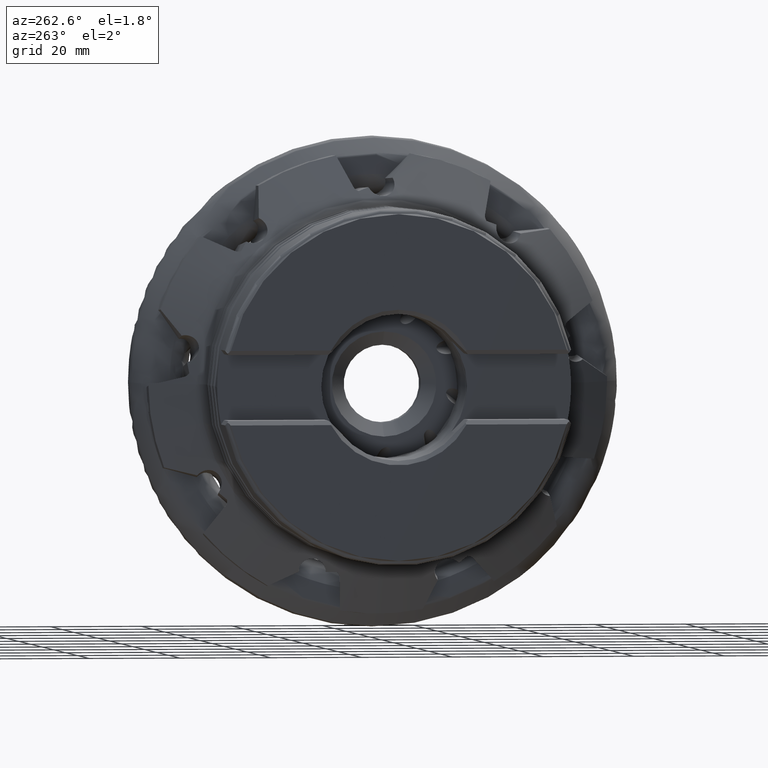
[diagram: clean part render]
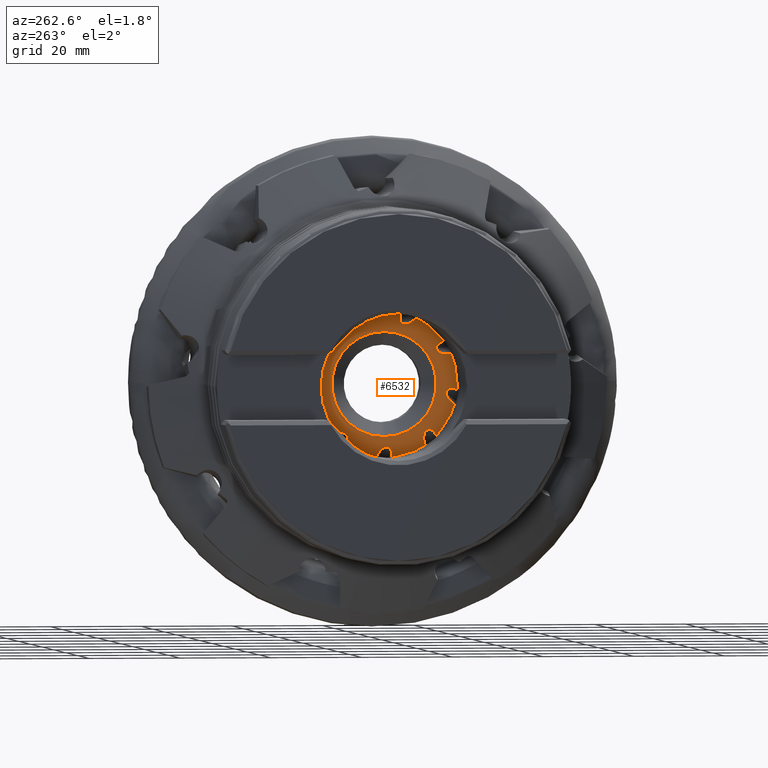
[diagram: same view with one face highlighted and labeled with its STEP entity id]
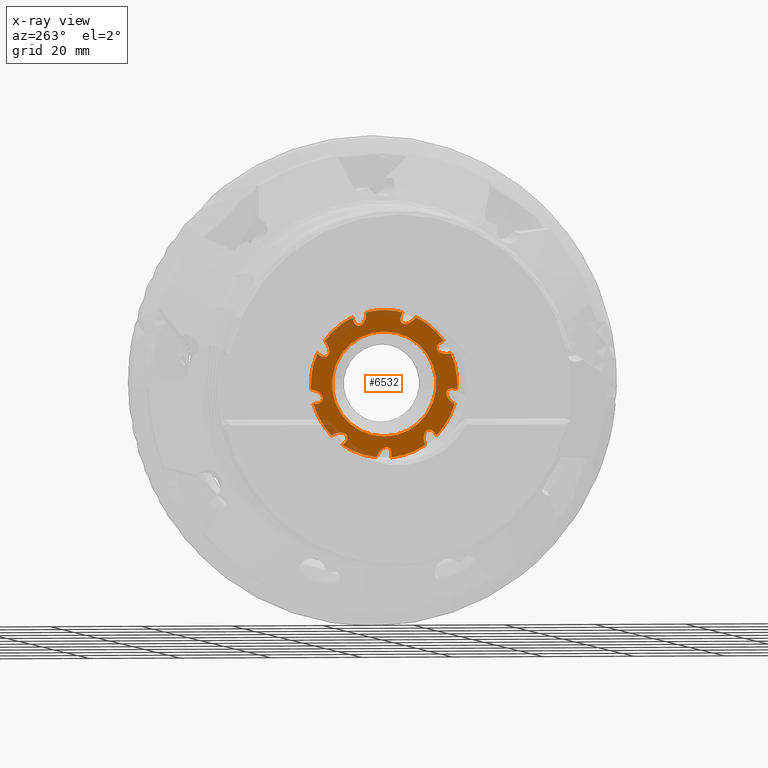
[diagram: x-ray of the same camera — body ghosted, the highlighted face saturated]
A machine part, auxiliary view. The second image highlights one B-rep face of the part: STEP entity #6532.
The next image is the same camera in x-ray: the body ghosted, the highlighted face saturated — about 13% of this face is hidden behind the body in this view.
In plain terms, the highlighted planar face has unit normal (1, 0, -0).
Its self-contained STEP definition (entity closure, byte-faithful):
#217 = DIRECTION ( 'NONE',  ( 0.0000000000000000000, 0.0000000000000000000, -1.000000000000000000 ) ) ;
#341 = DIRECTION ( 'NONE',  ( -0.0000000000000000000, 0.0000000000000000000, -1.000000000000000000 ) ) ;
#369 = EDGE_CURVE ( 'NONE', #13754, #2792, #745, .T. ) ;
#462 = CARTESIAN_POINT ( 'NONE',  ( -24.14999999999999900, 11.59154392015665500, -11.24538169859429400 ) ) ;
#623 = ORIENTED_EDGE ( 'NONE', *, *, #11697, .F. ) ;
#745 =( BOUNDED_CURVE ( )  B_SPLINE_CURVE ( 3, ( #11923, #5744, #12319, #11953 ),
 .UNSPECIFIED., .F., .F. ) 
 B_SPLINE_CURVE_WITH_KNOTS ( ( 4, 4 ),
 ( 5.888559016616056000, 8.097266387669348500 ),
 .UNSPECIFIED. ) 
 CURVE ( )  GEOMETRIC_REPRESENTATION_ITEM ( )  RATIONAL_B_SPLINE_CURVE ( ( 1.000000000000000000, 0.6331411988290459600, 0.6331411988290459600, 1.000000000000000000 ) ) 
 REPRESENTATION_ITEM ( '' )  );
#814 = ORIENTED_EDGE ( 'NONE', *, *, #8091, .F. ) ;
#1039 = ORIENTED_EDGE ( 'NONE', *, *, #9722, .F. ) ;
#1051 = ORIENTED_EDGE ( 'NONE', *, *, #11570, .F. ) ;
#1093 = EDGE_LOOP ( 'NONE', ( #12234, #9608 ) ) ;
#1106 = CARTESIAN_POINT ( 'NONE',  ( -24.14999999999999900, 13.11981632955508000, 5.929114685978293900 ) ) ;
#1232 = VERTEX_POINT ( 'NONE', #2932 ) ;
#1273 = CARTESIAN_POINT ( 'NONE',  ( -24.14999999999999900, -14.71600910748703200, -0.6502708822575408200 ) ) ;
#1464 = CARTESIAN_POINT ( 'NONE',  ( -24.14999999999999100, 13.49127161772788600, -3.139560930036347800 ) ) ;
#1477 =( BOUNDED_CURVE ( )  B_SPLINE_CURVE ( 3, ( #12694, #3353, #15557, #7444 ),
 .UNSPECIFIED., .F., .F. ) 
 B_SPLINE_CURVE_WITH_KNOTS ( ( 4, 4 ),
 ( 0.4056549918968359600, 1.814081080489764000 ),
 .UNSPECIFIED. ) 
 CURVE ( )  GEOMETRIC_REPRESENTATION_ITEM ( )  RATIONAL_B_SPLINE_CURVE ( ( 1.000000000000000000, 0.8414141931966204700, 0.8414141931966204700, 1.000000000000000000 ) ) 
 REPRESENTATION_ITEM ( '' )  );
#1481 = CARTESIAN_POINT ( 'NONE',  ( -24.14999999999999500, -1.483101034320183600, -13.81621824959037400 ) ) ;
#1543 = ORIENTED_EDGE ( 'NONE', *, *, #5676, .F. ) ;
#1590 = CIRCLE ( 'NONE', #9254, 16.14999999999999500 ) ;
#1816 = CARTESIAN_POINT ( 'NONE',  ( -24.14999999999999900, 8.098993803068603700, -11.68777280997601800 ) ) ;
#1935 = AXIS2_PLACEMENT_3D ( 'NONE', #7208, #16699, #8553 ) ;
#1945 =( BOUNDED_CURVE ( )  B_SPLINE_CURVE ( 3, ( #15038, #13721, #6989, #16465 ),
 .UNSPECIFIED., .F., .F. ) 
 B_SPLINE_CURVE_WITH_KNOTS ( ( 4, 4 ),
 ( 6.013548018748951800, 8.097266387669359100 ),
 .UNSPECIFIED. ) 
 CURVE ( )  GEOMETRIC_REPRESENTATION_ITEM ( )  RATIONAL_B_SPLINE_CURVE ( ( 1.000000000000000000, 0.6697440098179570100, 0.6697440098179570100, 1.000000000000000000 ) ) 
 REPRESENTATION_ITEM ( '' )  );
#1970 = CARTESIAN_POINT ( 'NONE',  ( -24.14999999999999900, -16.09929424643641500, -1.278759072952766300 ) ) ;
#2099 = VERTEX_POINT ( 'NONE', #8910 ) ;
#2132 = CARTESIAN_POINT ( 'NONE',  ( -24.14999999999999500, -3.539979013996285200, 14.19723946803632900 ) ) ;
#2162 = CARTESIAN_POINT ( 'NONE',  ( -24.14999999999999900, 14.69102664182707800, 6.707923390224924500 ) ) ;
#2186 = CARTESIAN_POINT ( 'NONE',  ( -24.14999999999999900, 6.942209280721255200, 14.58177733689098900 ) ) ;
#2210 = ORIENTED_EDGE ( 'NONE', *, *, #4980, .F. ) ;
#2211 = CARTESIAN_POINT ( 'NONE',  ( -24.14999999999999900, -13.15474538348818500, 9.368840584383734800 ) ) ;
#2243 = VERTEX_POINT ( 'NONE', #12605 ) ;
#2254 = DIRECTION ( 'NONE',  ( 1.000000000000000000, -0.0000000000000000000, -0.0000000000000000000 ) ) ;
#2306 = CARTESIAN_POINT ( 'NONE',  ( -24.14999999999999500, 6.831463583568758900, 13.44527595626976800 ) ) ;
#2464 = EDGE_CURVE ( 'NONE', #8499, #14208, #1590, .T. ) ;
#2469 = ORIENTED_EDGE ( 'NONE', *, *, #2522, .F. ) ;
#2522 = EDGE_CURVE ( 'NONE', #12551, #8160, #11029, .T. ) ;
#2573 = EDGE_CURVE ( 'Kante14', #17249, #2243, #15228, .T. ) ;
#2676 = EDGE_CURVE ( 'NONE', #13840, #15538, #7873, .T. ) ;
#2692 = CARTESIAN_POINT ( 'NONE',  ( -24.14999999999999900, -13.68797447902182700, -0.9760536445823683200 ) ) ;
#2778 = EDGE_CURVE ( 'NONE', #8272, #9330, #5215, .T. ) ;
#2792 = VERTEX_POINT ( 'NONE', #14893 ) ;
#2848 = CARTESIAN_POINT ( 'NONE',  ( -24.14999999999999500, -11.54762193578925900, 7.880020486995150900 ) ) ;
#2926 = DIRECTION ( 'NONE',  ( 1.000000000000000000, -0.0000000000000000000, -0.0000000000000000000 ) ) ;
#2932 = CARTESIAN_POINT ( 'NONE',  ( -24.14999999999999900, 6.942209280721255200, 14.58177733689098900 ) ) ;
#3155 = ORIENTED_EDGE ( 'NONE', *, *, #17607, .F. ) ;
#3340 = CARTESIAN_POINT ( 'NONE',  ( -24.14999999999999900, -3.539979013996287400, 14.64316525251952000 ) ) ;
#3353 = CARTESIAN_POINT ( 'NONE',  ( -24.15000000000000200, -13.68797447902182700, -2.910416350409843900 ) ) ;
#3418 = CARTESIAN_POINT ( 'NONE',  ( -24.14999999999999900, 0.3373789618573311300, -13.81621824959037800 ) ) ;
#3497 = CARTESIAN_POINT ( 'NONE',  ( -24.14999999999999900, -1.536281258338803900, -16.07676397460872800 ) ) ;
#3565 = CARTESIAN_POINT ( 'NONE',  ( -24.14999999999999900, -11.51080440775160000, -11.32801314823063900 ) ) ;
#3596 = AXIS2_PLACEMENT_3D ( 'NONE', #4738, #14176, #6101 ) ;
#3695 = CARTESIAN_POINT ( 'NONE',  ( -24.14999999999999500, 6.310548466149256800, 12.72674562113707500 ) ) ;
#3816 = AXIS2_PLACEMENT_3D ( 'NONE', #7235, #16727, #8585 ) ;
#3826 = DIRECTION ( 'NONE',  ( 0.0000000000000000000, 0.0000000000000000000, -1.000000000000000000 ) ) ;
#3999 =( BOUNDED_CURVE ( )  B_SPLINE_CURVE ( 3, ( #2186, #2306, #3695, #13161 ),
 .UNSPECIFIED., .F., .F. ) 
 B_SPLINE_CURVE_WITH_KNOTS ( ( 4, 4 ),
 ( 5.023171320125287700, 6.340366300592976700 ),
 .UNSPECIFIED. ) 
 CURVE ( )  GEOMETRIC_REPRESENTATION_ITEM ( )  RATIONAL_B_SPLINE_CURVE ( ( 1.000000000000000000, 0.8605675710784140800, 0.8605675710784140800, 1.000000000000000000 ) ) 
 REPRESENTATION_ITEM ( '' )  );
#4052 = VERTEX_POINT ( 'NONE', #2211 ) ;
#4151 = CARTESIAN_POINT ( 'NONE',  ( -24.14999999999999900, -13.15474538348818500, 9.368840584383734800 ) ) ;
#4208 = ORIENTED_EDGE ( 'NONE', *, *, #2778, .F. ) ;
#4296 = EDGE_CURVE ( 'NONE', #12117, #12551, #5287, .T. ) ;
#4346 = VERTEX_POINT ( 'NONE', #12473 ) ;
#4356 = CARTESIAN_POINT ( 'NONE',  ( -24.14999999999999900, 4.580179757878720000, 12.72674562113708100 ) ) ;
#4486 = AXIS2_PLACEMENT_3D ( 'NONE', #6352, #15824, #7704 ) ;
#4580 =( BOUNDED_CURVE ( )  B_SPLINE_CURVE ( 3, ( #8232, #8169, #1481, #11030 ),
 .UNSPECIFIED., .F., .F. ) 
 B_SPLINE_CURVE_WITH_KNOTS ( ( 4, 4 ),
 ( 5.023171320125284100, 6.562663056319967900 ),
 .UNSPECIFIED. ) 
 CURVE ( )  GEOMETRIC_REPRESENTATION_ITEM ( )  RATIONAL_B_SPLINE_CURVE ( ( 1.000000000000000000, 0.8120583710662119300, 0.8120583710662119300, 1.000000000000000000 ) ) 
 REPRESENTATION_ITEM ( '' )  );
#4711 = ORIENTED_EDGE ( 'NONE', *, *, #8949, .F. ) ;
#4738 = CARTESIAN_POINT ( 'NONE',  ( -24.14999999999999900, 0.0000000000000000000, 0.0000000000000000000 ) ) ;
#4742 = CARTESIAN_POINT ( 'NONE',  ( -24.14999999999999900, -0.5710761144391371900, -13.81621824959037400 ) ) ;
#4823 = CIRCLE ( 'NONE', #14559, 16.14999999999999500 ) ;
#4950 = CARTESIAN_POINT ( 'NONE',  ( -24.14999999999999500, -10.52170667173065900, -9.989795166158895500 ) ) ;
#4980 = EDGE_CURVE ( 'Kante59', #2792, #1232, #4823, .T. ) ;
#4984 = ORIENTED_EDGE ( 'NONE', *, *, #17271, .F. ) ;
#5005 = EDGE_CURVE ( 'NONE', #12264, #15695, #11166, .T. ) ;
#5215 =( BOUNDED_CURVE ( )  B_SPLINE_CURVE ( 3, ( #16416, #15737, #15712, #15688 ),
 .UNSPECIFIED., .F., .F. ) 
 B_SPLINE_CURVE_WITH_KNOTS ( ( 4, 4 ),
 ( 6.234770721425889000, 8.097266387669348500 ),
 .UNSPECIFIED. ) 
 CURVE ( )  GEOMETRIC_REPRESENTATION_ITEM ( )  RATIONAL_B_SPLINE_CURVE ( ( 1.000000000000000000, 0.7312221527958424600, 0.7312221527958424600, 1.000000000000000000 ) ) 
 REPRESENTATION_ITEM ( '' )  );
#5241 = CARTESIAN_POINT ( 'NONE',  ( -24.14999999999999900, 14.69102664182707800, 6.707923390224924500 ) ) ;
#5287 =( BOUNDED_CURVE ( )  B_SPLINE_CURVE ( 3, ( #12302, #15041, #9651, #1464 ),
 .UNSPECIFIED., .F., .F. ) 
 B_SPLINE_CURVE_WITH_KNOTS ( ( 4, 4 ),
 ( 5.023171320125291200, 6.448202707183996900 ),
 .UNSPECIFIED. ) 
 CURVE ( )  GEOMETRIC_REPRESENTATION_ITEM ( )  RATIONAL_B_SPLINE_CURVE ( ( 1.000000000000000000, 0.8378131093291783000, 0.8378131093291783000, 1.000000000000000000 ) ) 
 REPRESENTATION_ITEM ( '' )  );
#5546 = CARTESIAN_POINT ( 'NONE',  ( -24.14999999999999900, 13.11981632955508000, 5.929114685978293900 ) ) ;
#5634 = AXIS2_PLACEMENT_3D ( 'NONE', #16576, #8432, #217 ) ;
#5635 = CARTESIAN_POINT ( 'NONE',  ( -24.14999999999999900, -11.54762193578925700, 8.527402187975420500 ) ) ;
#5649 = EDGE_CURVE ( 'NONE', #14208, #13840, #7259, .T. ) ;
#5676 = EDGE_CURVE ( 'NONE', #15538, #12989, #13246, .T. ) ;
#5744 = CARTESIAN_POINT ( 'NONE',  ( -24.14999999999999900, 11.53798811412998200, 5.929114685978286800 ) ) ;
#5810 = ORIENTED_EDGE ( 'NONE', *, *, #2676, .F. ) ;
#5892 = CARTESIAN_POINT ( 'NONE',  ( -24.14999999999999900, 0.0000000000000000000, 0.0000000000000000000 ) ) ;
#6012 = DIRECTION ( 'NONE',  ( 1.000000000000000000, -0.0000000000000000000, -0.0000000000000000000 ) ) ;
#6101 = DIRECTION ( 'NONE',  ( 0.0000000000000000000, 0.0000000000000000000, -1.000000000000000000 ) ) ;
#6110 = DIRECTION ( 'NONE',  ( 1.000000000000000000, -0.0000000000000000000, -0.0000000000000000000 ) ) ;
#6334 = VERTEX_POINT ( 'NONE', #15024 ) ;
#6352 = CARTESIAN_POINT ( 'NONE',  ( -24.14999999999999900, 0.0000000000000000000, 0.0000000000000000000 ) ) ;
#6369 = EDGE_CURVE ( 'NONE', #17248, #4052, #17712, .T. ) ;
#6398 = EDGE_CURVE ( 'NONE', #9330, #14553, #10487, .T. ) ;
#6532 = ADVANCED_FACE ( 'NONE', ( #16419, #12814 ), #13950, .F. ) ;
#6767 = CARTESIAN_POINT ( 'NONE',  ( -24.14999999999999100, 13.49127161772788800, -2.183655831161580400 ) ) ;
#6842 = EDGE_CURVE ( 'NONE', #15695, #15361, #10464, .T. ) ;
#6879 = CARTESIAN_POINT ( 'NONE',  ( -24.14999999999999900, -15.53455818631349000, -4.415880654641853200 ) ) ;
#6911 =( BOUNDED_CURVE ( )  B_SPLINE_CURVE ( 3, ( #9454, #1273, #2692, #12186 ),
 .UNSPECIFIED., .F., .F. ) 
 B_SPLINE_CURVE_WITH_KNOTS ( ( 4, 4 ),
 ( 5.023171320125295700, 6.688840299076422200 ),
 .UNSPECIFIED. ) 
 CURVE ( )  GEOMETRIC_REPRESENTATION_ITEM ( )  RATIONAL_B_SPLINE_CURVE ( ( 1.000000000000000000, 0.7818542620542317000, 0.7818542620542317000, 1.000000000000000000 ) ) 
 REPRESENTATION_ITEM ( '' )  );
#6989 = CARTESIAN_POINT ( 'NONE',  ( -24.14999999999999900, 9.837245068173830400, -10.10122485492747700 ) ) ;
#7016 = CIRCLE ( 'NONE', #3816, 16.14999999999999500 ) ;
#7022 = AXIS2_PLACEMENT_3D ( 'NONE', #7303, #16793, #8649 ) ;
#7065 = CARTESIAN_POINT ( 'NONE',  ( -24.14999999999999900, 3.943014266156783100, 15.66126235323589800 ) ) ;
#7208 = CARTESIAN_POINT ( 'NONE',  ( -24.14999999999999900, 0.0000000000000000000, 0.0000000000000000000 ) ) ;
#7235 = CARTESIAN_POINT ( 'NONE',  ( -24.14999999999999900, 0.0000000000000000000, 0.0000000000000000000 ) ) ;
#7259 =( BOUNDED_CURVE ( )  B_SPLINE_CURVE ( 3, ( #3565, #13029, #4950, #14393 ),
 .UNSPECIFIED., .F., .T. ) 
 B_SPLINE_CURVE_WITH_KNOTS ( ( 4, 4 ),
 ( 5.023171320125289400, 6.127279709595552700 ),
 .UNSPECIFIED. ) 
 CURVE ( )  GEOMETRIC_REPRESENTATION_ITEM ( )  RATIONAL_B_SPLINE_CURVE ( ( 1.000000000000000000, 0.9009660151705200000, 0.9009660151705200000, 1.000000000000000000 ) ) 
 REPRESENTATION_ITEM ( '' )  );
#7303 = CARTESIAN_POINT ( 'NONE',  ( -24.14999999999999900, 0.0000000000000000000, 0.0000000000000000000 ) ) ;
#7444 = CARTESIAN_POINT ( 'NONE',  ( -24.14999999999999900, -15.53455818631349000, -4.415880654641853200 ) ) ;
#7506 = CARTESIAN_POINT ( 'NONE',  ( -24.14999999999999900, 1.651245785153387500, -16.06536296997404600 ) ) ;
#7548 = CARTESIAN_POINT ( 'NONE',  ( -24.14999999999999900, 0.0000000000000000000, 0.0000000000000000000 ) ) ;
#7610 = CARTESIAN_POINT ( 'NONE',  ( -24.14999999999999900, -7.046341224982010800, 14.53174371302766800 ) ) ;
#7704 = DIRECTION ( 'NONE',  ( 0.0000000000000000000, 0.0000000000000000000, -1.000000000000000000 ) ) ;
#7791 = DIRECTION ( 'NONE',  ( 0.0000000000000000000, 0.0000000000000000000, -1.000000000000000000 ) ) ;
#7873 =( BOUNDED_CURVE ( )  B_SPLINE_CURVE ( 3, ( #17335, #17358, #17411, #17276 ),
 .UNSPECIFIED., .F., .F. ) 
 B_SPLINE_CURVE_WITH_KNOTS ( ( 4, 4 ),
 ( 6.127279709595552700, 8.097266387669355600 ),
 .UNSPECIFIED. ) 
 CURVE ( )  GEOMETRIC_REPRESENTATION_ITEM ( )  RATIONAL_B_SPLINE_CURVE ( ( 1.000000000000000000, 0.7019124432205440200, 0.7019124432205440200, 1.000000000000000000 ) ) 
 REPRESENTATION_ITEM ( '' )  );
#7951 = EDGE_CURVE ( 'NONE', #1232, #4346, #3999, .T. ) ;
#8041 = CARTESIAN_POINT ( 'NONE',  ( -24.14999999999999900, 0.0000000000000000000, 0.0000000000000000000 ) ) ;
#8063 = DIRECTION ( 'NONE',  ( 1.000000000000000000, -0.0000000000000000000, -0.0000000000000000000 ) ) ;
#8091 = EDGE_CURVE ( 'NONE', #8160, #9915, #17456, .T. ) ;
#8160 = VERTEX_POINT ( 'NONE', #17349 ) ;
#8169 = CARTESIAN_POINT ( 'NONE',  ( -24.14999999999999500, -1.879297982015161000, -14.74412598199074000 ) ) ;
#8232 = CARTESIAN_POINT ( 'NONE',  ( -24.14999999999999900, -1.536281258338803900, -16.07676397460872800 ) ) ;
#8272 = VERTEX_POINT ( 'NONE', #2848 ) ;
#8432 = DIRECTION ( 'NONE',  ( 1.000000000000000000, -0.0000000000000000000, -0.0000000000000000000 ) ) ;
#8461 = ORIENTED_EDGE ( 'NONE', *, *, #17298, .F. ) ;
#8499 = VERTEX_POINT ( 'NONE', #6879 ) ;
#8553 = DIRECTION ( 'NONE',  ( 0.0000000000000000000, 0.0000000000000000000, -1.000000000000000000 ) ) ;
#8565 = DIRECTION ( 'NONE',  ( 1.000000000000000000, 0.0000000000000000000, -0.0000000000000000000 ) ) ;
#8585 = DIRECTION ( 'NONE',  ( 0.0000000000000000000, 0.0000000000000000000, -1.000000000000000000 ) ) ;
#8606 = AXIS2_PLACEMENT_3D ( 'NONE', #7548, #17033, #8894 ) ;
#8620 = CARTESIAN_POINT ( 'NONE',  ( -24.15000000000000200, 8.482393721522880600, -12.82059954712004700 ) ) ;
#8649 = DIRECTION ( 'NONE',  ( 0.0000000000000000000, 0.0000000000000000000, -1.000000000000000000 ) ) ;
#8894 = DIRECTION ( 'NONE',  ( 0.0000000000000000000, 0.0000000000000000000, -1.000000000000000000 ) ) ;
#8908 =( BOUNDED_CURVE ( )  B_SPLINE_CURVE ( 3, ( #2132, #10280, #15724, #7610 ),
 .UNSPECIFIED., .F., .F. ) 
 B_SPLINE_CURVE_WITH_KNOTS ( ( 4, 4 ),
 ( 5.746183701228819300, 8.097266387669360900 ),
 .UNSPECIFIED. ) 
 CURVE ( )  GEOMETRIC_REPRESENTATION_ITEM ( )  RATIONAL_B_SPLINE_CURVE ( ( 1.000000000000000000, 0.5900290168397193100, 0.5900290168397193100, 1.000000000000000000 ) ) 
 REPRESENTATION_ITEM ( '' )  );
#8910 = CARTESIAN_POINT ( 'NONE',  ( -24.14999999999999900, 8.098993803068603700, -11.68777280997601800 ) ) ;
#8949 = EDGE_CURVE ( 'NONE', #14553, #6334, #6911, .T. ) ;
#9250 = ORIENTED_EDGE ( 'NONE', *, *, #5649, .F. ) ;
#9254 = AXIS2_PLACEMENT_3D ( 'NONE', #5892, #6012, #3826 ) ;
#9288 = CARTESIAN_POINT ( 'NONE',  ( -24.14999999999999900, 13.62077913557445400, 5.929114685978290400 ) ) ;
#9330 = VERTEX_POINT ( 'NONE', #12020 ) ;
#9454 = CARTESIAN_POINT ( 'NONE',  ( -24.14999999999999900, -16.09929424643641500, -1.278759072952766300 ) ) ;
#9608 = ORIENTED_EDGE ( 'NONE', *, *, #2573, .T. ) ;
#9651 = CARTESIAN_POINT ( 'NONE',  ( -24.14999999999999100, 13.49127161772788400, -3.937971382500294700 ) ) ;
#9722 = EDGE_CURVE ( 'NONE', #15741, #10884, #7016, .T. ) ;
#9915 = VERTEX_POINT ( 'NONE', #2162 ) ;
#9975 = VERTEX_POINT ( 'NONE', #14444 ) ;
#9987 = CARTESIAN_POINT ( 'NONE',  ( -24.15000000000000200, 8.098993803068601900, -12.23531446281424100 ) ) ;
#10088 = CARTESIAN_POINT ( 'NONE',  ( -24.14999999999999900, -4.054944956896066300, 15.63265560922210200 ) ) ;
#10104 = CARTESIAN_POINT ( 'NONE',  ( -24.14999999999999900, -7.046341224982010800, 14.53174371302766800 ) ) ;
#10265 = ORIENTED_EDGE ( 'NONE', *, *, #6369, .F. ) ;
#10280 = CARTESIAN_POINT ( 'NONE',  ( -24.14999999999999900, -3.539979013996277200, 12.31011956976760400 ) ) ;
#10375 = CARTESIAN_POINT ( 'NONE',  ( -24.14999999999999500, -3.539979013996285200, 14.19723946803632900 ) ) ;
#10393 = CARTESIAN_POINT ( 'NONE',  ( -24.14999999999999900, -9.061688604275644800, -13.36818236108188200 ) ) ;
#10399 = CARTESIAN_POINT ( 'NONE',  ( -24.14999999999999900, 0.0000000000000000000, 0.0000000000000000000 ) ) ;
#10464 = CIRCLE ( 'NONE', #16172, 16.14999999999999500 ) ;
#10487 = CIRCLE ( 'NONE', #1935, 16.14999999999999500 ) ;
#10606 = ORIENTED_EDGE ( 'NONE', *, *, #16617, .F. ) ;
#10800 = ORIENTED_EDGE ( 'NONE', *, *, #12774, .F. ) ;
#10884 = VERTEX_POINT ( 'NONE', #11736 ) ;
#11029 =( BOUNDED_CURVE ( )  B_SPLINE_CURVE ( 3, ( #13039, #6767, #17196, #17128 ),
 .UNSPECIFIED., .F., .F. ) 
 B_SPLINE_CURVE_WITH_KNOTS ( ( 4, 4 ),
 ( 0.1650174000044108400, 1.814081080489767800 ),
 .UNSPECIFIED. ) 
 CURVE ( )  GEOMETRIC_REPRESENTATION_ITEM ( )  RATIONAL_B_SPLINE_CURVE ( ( 1.000000000000000000, 0.7859338513079230400, 0.7859338513079230400, 1.000000000000000000 ) ) 
 REPRESENTATION_ITEM ( '' )  );
#11030 = CARTESIAN_POINT ( 'NONE',  ( -24.14999999999999900, -0.5710761144391371900, -13.81621824959037400 ) ) ;
#11049 = CARTESIAN_POINT ( 'NONE',  ( -24.14999999999999900, 0.0000000000000000000, 0.0000000000000000000 ) ) ;
#11156 = ORIENTED_EDGE ( 'NONE', *, *, #7951, .F. ) ;
#11166 =( BOUNDED_CURVE ( )  B_SPLINE_CURVE ( 3, ( #4742, #3418, #15611, #7506 ),
 .UNSPECIFIED., .F., .F. ) 
 B_SPLINE_CURVE_WITH_KNOTS ( ( 4, 4 ),
 ( 0.2794777491403817000, 1.814081080489775300 ),
 .UNSPECIFIED. ) 
 CURVE ( )  GEOMETRIC_REPRESENTATION_ITEM ( )  RATIONAL_B_SPLINE_CURVE ( ( 1.000000000000000000, 0.8131909729238746600, 0.8131909729238746600, 1.000000000000000000 ) ) 
 REPRESENTATION_ITEM ( '' )  );
#11570 = EDGE_CURVE ( 'NONE', #4052, #8272, #17627, .T. ) ;
#11630 =( BOUNDED_CURVE ( )  B_SPLINE_CURVE ( 3, ( #16484, #4356, #15173, #7065 ),
 .UNSPECIFIED., .F., .F. ) 
 B_SPLINE_CURVE_WITH_KNOTS ( ( 4, 4 ),
 ( 0.05718099341339074500, 1.814081080489771100 ),
 .UNSPECIFIED. ) 
 CURVE ( )  GEOMETRIC_REPRESENTATION_ITEM ( )  RATIONAL_B_SPLINE_CURVE ( ( 1.000000000000000000, 0.7588966600608803000, 0.7588966600608803000, 1.000000000000000000 ) ) 
 REPRESENTATION_ITEM ( '' )  );
#11634 = ORIENTED_EDGE ( 'NONE', *, *, #5005, .F. ) ;
#11697 = EDGE_CURVE ( 'NONE', #15361, #2099, #12474, .T. ) ;
#11718 = VERTEX_POINT ( 'NONE', #462 ) ;
#11736 = CARTESIAN_POINT ( 'NONE',  ( -24.14999999999999900, -4.054944956896066300, 15.63265560922210200 ) ) ;
#11753 = DIRECTION ( 'NONE',  ( 0.0000000000000000000, 0.0000000000000000000, -1.000000000000000000 ) ) ;
#11923 = CARTESIAN_POINT ( 'NONE',  ( -24.14999999999999900, 13.11981632955508000, 5.929114685978293900 ) ) ;
#11947 = EDGE_CURVE ( 'Kante14', #2243, #17249, #13953, .T. ) ;
#11953 = CARTESIAN_POINT ( 'NONE',  ( -24.14999999999999900, 13.08738956043848500, 9.462702282822032600 ) ) ;
#11959 = CARTESIAN_POINT ( 'NONE',  ( -24.14999999999999900, 14.17880096616381500, 6.205711813319097400 ) ) ;
#11973 = CARTESIAN_POINT ( 'NONE',  ( -24.14999999999999900, -11.51080440775160000, -11.32801314823063900 ) ) ;
#11987 = CARTESIAN_POINT ( 'NONE',  ( -24.14999999999999900, 9.157084965715176500, -13.30301826393819600 ) ) ;
#12020 = CARTESIAN_POINT ( 'NONE',  ( -24.14999999999999900, -14.73863534559216300, 6.602660687151878700 ) ) ;
#12117 = VERTEX_POINT ( 'NONE', #13099 ) ;
#12176 = ORIENTED_EDGE ( 'NONE', *, *, #17651, .F. ) ;
#12186 = CARTESIAN_POINT ( 'NONE',  ( -24.14999999999999500, -13.68797447902183100, -2.042902996635218100 ) ) ;
#12207 = CARTESIAN_POINT ( 'NONE',  ( -24.14999999999999900, 1.977804580622974800E-015, 16.14999999999999500 ) ) ;
#12234 = ORIENTED_EDGE ( 'NONE', *, *, #11947, .T. ) ;
#12264 = VERTEX_POINT ( 'NONE', #16243 ) ;
#12302 = CARTESIAN_POINT ( 'NONE',  ( -24.14999999999999900, 15.56574936464763100, -4.304642460991587400 ) ) ;
#12319 = CARTESIAN_POINT ( 'NONE',  ( -24.14999999999999900, 11.52091621443550700, 7.789462005754042900 ) ) ;
#12396 = DIRECTION ( 'NONE',  ( 0.0000000000000000000, 0.0000000000000000000, -1.000000000000000000 ) ) ;
#12408 = CARTESIAN_POINT ( 'NONE',  ( -24.14999999999999900, 11.50000000000000700, 0.0000000000000000000 ) ) ;
#12426 = CARTESIAN_POINT ( 'NONE',  ( -24.14999999999999900, -9.927532761056991000, -9.989795166158895500 ) ) ;
#12473 = CARTESIAN_POINT ( 'NONE',  ( -24.14999999999999900, 5.597361308714099900, 12.72674562113708100 ) ) ;
#12474 =( BOUNDED_CURVE ( )  B_SPLINE_CURVE ( 3, ( #12638, #8620, #9987, #1816 ),
 .UNSPECIFIED., .F., .F. ) 
 B_SPLINE_CURVE_WITH_KNOTS ( ( 4, 4 ),
 ( 5.023171320125287700, 6.013548018748951800 ),
 .UNSPECIFIED. ) 
 CURVE ( )  GEOMETRIC_REPRESENTATION_ITEM ( )  RATIONAL_B_SPLINE_CURVE ( ( 1.000000000000000000, 0.9199194815623128500, 0.9199194815623128500, 1.000000000000000000 ) ) 
 REPRESENTATION_ITEM ( '' )  );
#12521 = VERTEX_POINT ( 'NONE', #10375 ) ;
#12541 = ORIENTED_EDGE ( 'NONE', *, *, #6398, .F. ) ;
#12551 = VERTEX_POINT ( 'NONE', #14572 ) ;
#12605 = CARTESIAN_POINT ( 'NONE',  ( -24.14999999999999900, 0.0000000000000000000, 11.50000000000000700 ) ) ;
#12638 = CARTESIAN_POINT ( 'NONE',  ( -24.14999999999999900, 9.157084965715176500, -13.30301826393819600 ) ) ;
#12694 = CARTESIAN_POINT ( 'NONE',  ( -24.14999999999999500, -13.68797447902183100, -2.042902996635218100 ) ) ;
#12774 = EDGE_CURVE ( 'NONE', #2099, #11718, #1945, .T. ) ;
#12806 = CARTESIAN_POINT ( 'NONE',  ( -24.14999999999999500, -3.539979013996285200, 14.19723946803632900 ) ) ;
#12814 = FACE_OUTER_BOUND ( 'NONE', #16521, .T. ) ;
#12820 = CARTESIAN_POINT ( 'NONE',  ( -24.14999999999999900, 1.408343819019457000E-015, -11.50000000000000700 ) ) ;
#12989 = VERTEX_POINT ( 'NONE', #3497 ) ;
#13029 = CARTESIAN_POINT ( 'NONE',  ( -24.14999999999999500, -11.10747484353566400, -10.48490003491041000 ) ) ;
#13039 = CARTESIAN_POINT ( 'NONE',  ( -24.14999999999999100, 13.49127161772788600, -3.139560930036347800 ) ) ;
#13099 = CARTESIAN_POINT ( 'NONE',  ( -24.14999999999999900, 15.56574936464763100, -4.304642460991587400 ) ) ;
#13161 = CARTESIAN_POINT ( 'NONE',  ( -24.14999999999999900, 5.597361308714099900, 12.72674562113708100 ) ) ;
#13246 = CIRCLE ( 'NONE', #4486, 16.14999999999999500 ) ;
#13592 = ORIENTED_EDGE ( 'NONE', *, *, #15780, .F. ) ;
#13721 = CARTESIAN_POINT ( 'NONE',  ( -24.14999999999999900, 8.098993803068601900, -10.32140406016443800 ) ) ;
#13754 = VERTEX_POINT ( 'NONE', #5546 ) ;
#13766 = AXIS2_PLACEMENT_3D ( 'NONE', #12408, #8565, #341 ) ;
#13811 = EDGE_CURVE ( 'NONE', #4346, #9975, #11630, .T. ) ;
#13840 = VERTEX_POINT ( 'NONE', #12426 ) ;
#13882 = ORIENTED_EDGE ( 'NONE', *, *, #2464, .F. ) ;
#13893 =( BOUNDED_CURVE ( )  B_SPLINE_CURVE ( 3, ( #10088, #14110, #3340, #12806 ),
 .UNSPECIFIED., .F., .F. ) 
 B_SPLINE_CURVE_WITH_KNOTS ( ( 4, 4 ),
 ( 5.023171320125285900, 5.746183701228819300 ),
 .UNSPECIFIED. ) 
 CURVE ( )  GEOMETRIC_REPRESENTATION_ITEM ( )  RATIONAL_B_SPLINE_CURVE ( ( 1.000000000000000000, 0.9569101134430180200, 0.9569101134430180200, 1.000000000000000000 ) ) 
 REPRESENTATION_ITEM ( '' )  );
#13922 = EDGE_CURVE ( 'NONE', #9975, #15741, #14104, .T. ) ;
#13946 = CIRCLE ( 'NONE', #8606, 16.14999999999999500 ) ;
#13950 = PLANE ( 'NONE',  #13766 ) ;
#13953 = CIRCLE ( 'NONE', #3596, 11.50000000000000700 ) ;
#14015 =( BOUNDED_CURVE ( )  B_SPLINE_CURVE ( 3, ( #5241, #11959, #9288, #1106 ),
 .UNSPECIFIED., .F., .F. ) 
 B_SPLINE_CURVE_WITH_KNOTS ( ( 4, 4 ),
 ( 5.023171320125298300, 5.888559016616056000 ),
 .UNSPECIFIED. ) 
 CURVE ( )  GEOMETRIC_REPRESENTATION_ITEM ( )  RATIONAL_B_SPLINE_CURVE ( ( 1.000000000000000000, 0.9385596441704994200, 0.9385596441704994200, 1.000000000000000000 ) ) 
 REPRESENTATION_ITEM ( '' )  );
#14104 = CIRCLE ( 'NONE', #7022, 16.14999999999999500 ) ;
#14110 = CARTESIAN_POINT ( 'NONE',  ( -24.14999999999999900, -3.719364007308015600, 15.14318300793895100 ) ) ;
#14176 = DIRECTION ( 'NONE',  ( 1.000000000000000000, -0.0000000000000000000, -0.0000000000000000000 ) ) ;
#14184 = CARTESIAN_POINT ( 'NONE',  ( -24.14999999999999900, 0.0000000000000000000, 0.0000000000000000000 ) ) ;
#14208 = VERTEX_POINT ( 'NONE', #11973 ) ;
#14322 = ORIENTED_EDGE ( 'NONE', *, *, #13922, .F. ) ;
#14393 = CARTESIAN_POINT ( 'NONE',  ( -24.14999999999999900, -9.927532761056991000, -9.989795166158895500 ) ) ;
#14444 = CARTESIAN_POINT ( 'NONE',  ( -24.14999999999999900, 3.943014266156783100, 15.66126235323589800 ) ) ;
#14484 = ORIENTED_EDGE ( 'NONE', *, *, #369, .F. ) ;
#14553 = VERTEX_POINT ( 'NONE', #1970 ) ;
#14559 = AXIS2_PLACEMENT_3D ( 'NONE', #14184, #6110, #15560 ) ;
#14572 = CARTESIAN_POINT ( 'NONE',  ( -24.14999999999999100, 13.49127161772788600, -3.139560930036347800 ) ) ;
#14880 = CARTESIAN_POINT ( 'NONE',  ( -24.14999999999999900, 1.651245785153387500, -16.06536296997404600 ) ) ;
#14893 = CARTESIAN_POINT ( 'NONE',  ( -24.14999999999999900, 13.08738956043848500, 9.462702282822032600 ) ) ;
#15024 = CARTESIAN_POINT ( 'NONE',  ( -24.14999999999999500, -13.68797447902183100, -2.042902996635218100 ) ) ;
#15038 = CARTESIAN_POINT ( 'NONE',  ( -24.14999999999999900, 8.098993803068603700, -11.68777280997601800 ) ) ;
#15041 = CARTESIAN_POINT ( 'NONE',  ( -24.14999999999999100, 14.31662583408795600, -4.401512124455710900 ) ) ;
#15083 = CARTESIAN_POINT ( 'NONE',  ( -24.14999999999999500, -11.54762193578925900, 7.880020486995150900 ) ) ;
#15173 = CARTESIAN_POINT ( 'NONE',  ( -24.14999999999999900, 3.853534032304510000, 14.01568559875467700 ) ) ;
#15228 = CIRCLE ( 'NONE', #15617, 11.50000000000000700 ) ;
#15325 = ORIENTED_EDGE ( 'NONE', *, *, #13811, .F. ) ;
#15361 = VERTEX_POINT ( 'NONE', #11987 ) ;
#15538 = VERTEX_POINT ( 'NONE', #10393 ) ;
#15557 = CARTESIAN_POINT ( 'NONE',  ( -24.15000000000000200, -14.41951419799436400, -3.850491475199218500 ) ) ;
#15560 = DIRECTION ( 'NONE',  ( 0.0000000000000000000, 0.0000000000000000000, -1.000000000000000000 ) ) ;
#15576 = AXIS2_PLACEMENT_3D ( 'NONE', #10399, #2254, #11753 ) ;
#15611 = CARTESIAN_POINT ( 'NONE',  ( -24.14999999999999900, 1.248326071694740000, -14.73816024323906700 ) ) ;
#15617 = AXIS2_PLACEMENT_3D ( 'NONE', #8041, #8063, #7791 ) ;
#15688 = CARTESIAN_POINT ( 'NONE',  ( -24.14999999999999900, -14.73863534559216300, 6.602660687151878700 ) ) ;
#15695 = VERTEX_POINT ( 'NONE', #14880 ) ;
#15712 = CARTESIAN_POINT ( 'NONE',  ( -24.15000000000000200, -13.00227033851336100, 6.198197744612764700 ) ) ;
#15724 = CARTESIAN_POINT ( 'NONE',  ( -24.14999999999999900, -5.520877190703126700, 12.49909572486302500 ) ) ;
#15737 = CARTESIAN_POINT ( 'NONE',  ( -24.15000000000000200, -11.54762193578925700, 6.780492192777006500 ) ) ;
#15741 = VERTEX_POINT ( 'NONE', #12207 ) ;
#15780 = EDGE_CURVE ( 'NONE', #12989, #12264, #4580, .T. ) ;
#15824 = DIRECTION ( 'NONE',  ( 1.000000000000000000, -0.0000000000000000000, -0.0000000000000000000 ) ) ;
#16172 = AXIS2_PLACEMENT_3D ( 'NONE', #11049, #2926, #12396 ) ;
#16243 = CARTESIAN_POINT ( 'NONE',  ( -24.14999999999999900, -0.5710761144391371900, -13.81621824959037400 ) ) ;
#16416 = CARTESIAN_POINT ( 'NONE',  ( -24.14999999999999500, -11.54762193578925900, 7.880020486995150900 ) ) ;
#16419 = FACE_BOUND ( 'NONE', #1093, .T. ) ;
#16465 = CARTESIAN_POINT ( 'NONE',  ( -24.14999999999999900, 11.59154392015665500, -11.24538169859429400 ) ) ;
#16484 = CARTESIAN_POINT ( 'NONE',  ( -24.14999999999999900, 5.597361308714099900, 12.72674562113708100 ) ) ;
#16521 = EDGE_LOOP ( 'NONE', ( #623, #16989, #11634, #13592, #1543, #5810, #9250, #13882, #4984, #4711, #12541, #4208, #1051, #10265, #8461, #3155, #1039, #14322, #15325, #11156, #2210, #14484, #10606, #814, #2469, #17047, #12176, #10800 ) ) ;
#16576 = CARTESIAN_POINT ( 'NONE',  ( -24.14999999999999900, 0.0000000000000000000, 0.0000000000000000000 ) ) ;
#16617 = EDGE_CURVE ( 'NONE', #9915, #13754, #14015, .T. ) ;
#16699 = DIRECTION ( 'NONE',  ( 1.000000000000000000, -0.0000000000000000000, -0.0000000000000000000 ) ) ;
#16727 = DIRECTION ( 'NONE',  ( 1.000000000000000000, -0.0000000000000000000, -0.0000000000000000000 ) ) ;
#16793 = DIRECTION ( 'NONE',  ( 1.000000000000000000, -0.0000000000000000000, -0.0000000000000000000 ) ) ;
#16989 = ORIENTED_EDGE ( 'NONE', *, *, #6842, .F. ) ;
#17033 = DIRECTION ( 'NONE',  ( 1.000000000000000000, -0.0000000000000000000, -0.0000000000000000000 ) ) ;
#17047 = ORIENTED_EDGE ( 'NONE', *, *, #4296, .F. ) ;
#17128 = CARTESIAN_POINT ( 'NONE',  ( -24.14999999999999900, 16.10802982925776000, -1.163561351945869600 ) ) ;
#17196 = CARTESIAN_POINT ( 'NONE',  ( -24.14999999999999100, 14.60110132632874700, -1.345587175721889400 ) ) ;
#17248 = VERTEX_POINT ( 'NONE', #10104 ) ;
#17249 = VERTEX_POINT ( 'NONE', #12820 ) ;
#17271 = EDGE_CURVE ( 'NONE', #6334, #8499, #1477, .T. ) ;
#17276 = CARTESIAN_POINT ( 'NONE',  ( -24.14999999999999900, -9.061688604275644800, -13.36818236108188200 ) ) ;
#17298 = EDGE_CURVE ( 'NONE', #12521, #17248, #8908, .T. ) ;
#17335 = CARTESIAN_POINT ( 'NONE',  ( -24.14999999999999900, -9.927532761056991000, -9.989795166158895500 ) ) ;
#17349 = CARTESIAN_POINT ( 'NONE',  ( -24.14999999999999900, 16.10802982925776000, -1.163561351945869600 ) ) ;
#17358 = CARTESIAN_POINT ( 'NONE',  ( -24.14999999999999900, -8.715734493818299500, -9.989795166158893700 ) ) ;
#17411 = CARTESIAN_POINT ( 'NONE',  ( -24.14999999999999900, -8.304551130829482400, -11.59416772836533800 ) ) ;
#17456 = CIRCLE ( 'NONE', #15576, 16.14999999999999500 ) ;
#17607 = EDGE_CURVE ( 'NONE', #10884, #12521, #13893, .T. ) ;
#17627 =( BOUNDED_CURVE ( )  B_SPLINE_CURVE ( 3, ( #4151, #17715, #5635, #15083 ),
 .UNSPECIFIED., .F., .F. ) 
 B_SPLINE_CURVE_WITH_KNOTS ( ( 4, 4 ),
 ( 5.023171320125298300, 6.234770721425889000 ),
 .UNSPECIFIED. ) 
 CURVE ( )  GEOMETRIC_REPRESENTATION_ITEM ( )  RATIONAL_B_SPLINE_CURVE ( ( 1.000000000000000000, 0.8813646635165938200, 0.8813646635165938200, 1.000000000000000000 ) ) 
 REPRESENTATION_ITEM ( '' )  );
#17651 = EDGE_CURVE ( 'Kante32', #11718, #12117, #13946, .T. ) ;
#17712 = CIRCLE ( 'NONE', #5634, 16.14999999999999500 ) ;
#17715 = CARTESIAN_POINT ( 'NONE',  ( -24.14999999999999900, -12.15543824392466400, 9.090476005589188400 ) ) ;